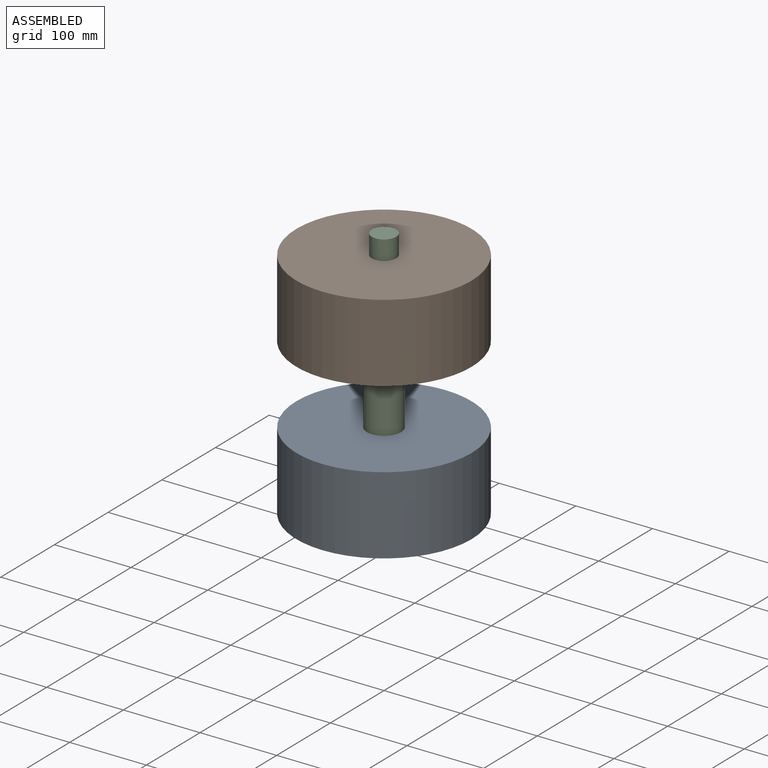
[diagram: assembled view]
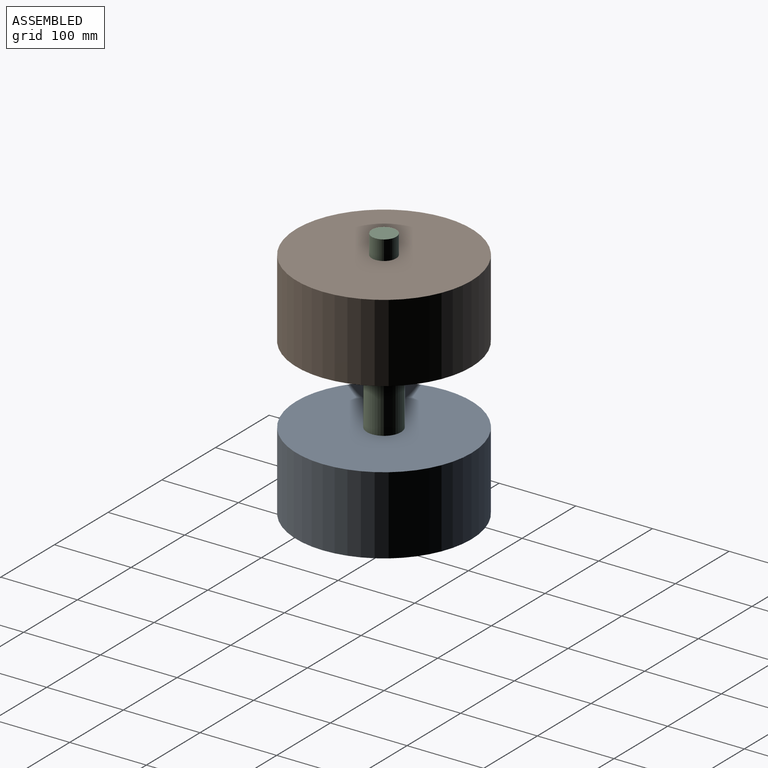
[diagram: assembled view, second angle]
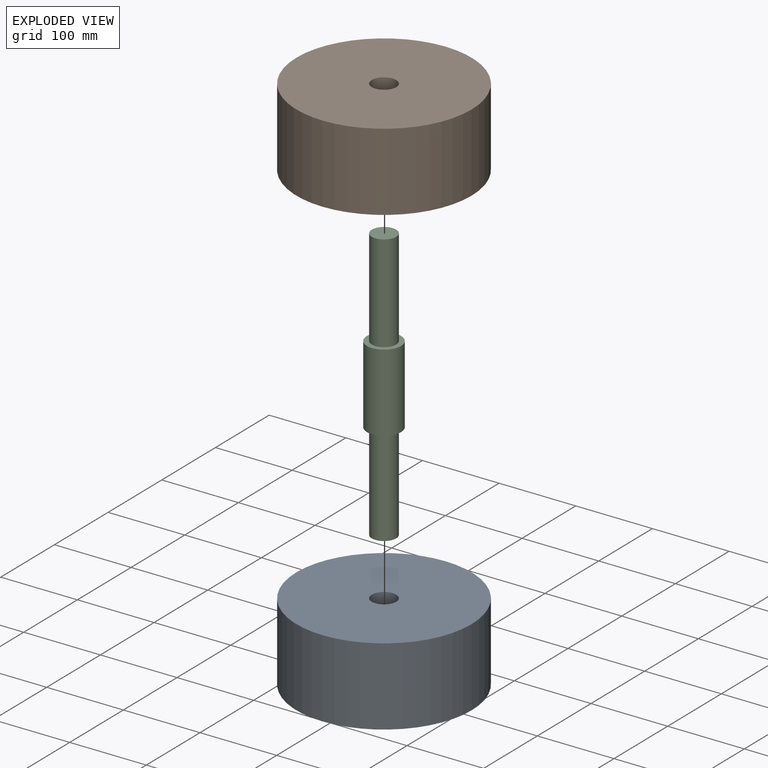
[diagram: exploded view]
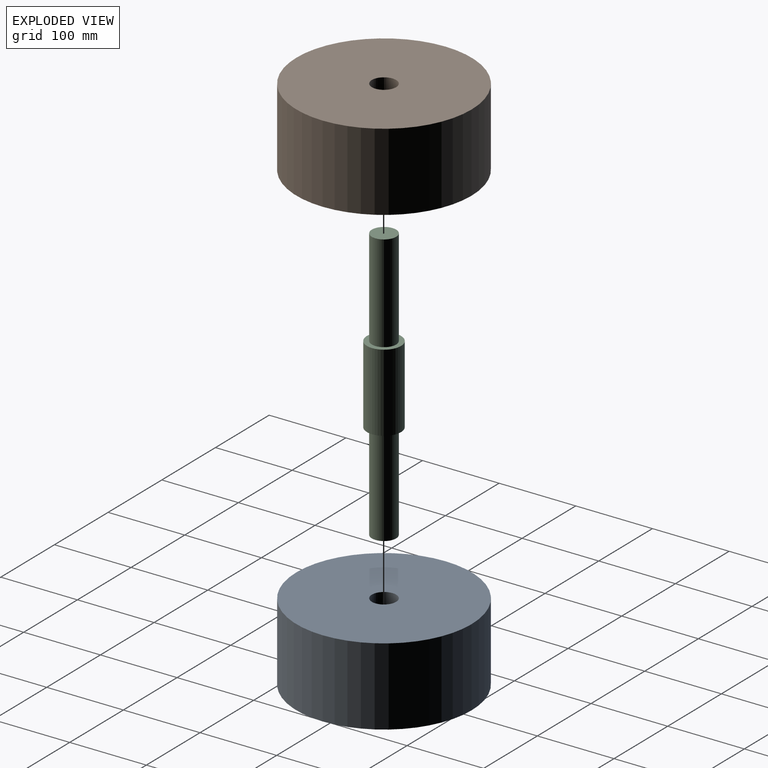
[diagram: exploded view, second angle]
ASSEMBLY  parts=3 mates=2
PART A: 4 faces, bbox 228.6x228.6x101.6 mm
  f0: cylinder r=15.88mm len=101.6mm, axis (0,0,-1), area 10134.1mm2, adj f2,f3
  f1: cylinder r=114.3mm len=228.6mm, axis (0,0,-1), area 72965.9mm2, adj f2,f3
  f2: plane 228.6x228.6mm, normal (0,0,1), area 40251.6mm2, adj f0,f1
  f3: plane 228.6x228.6mm, normal (0,0,-1), area 40251.6mm2, adj f0,f1
PART B: same geometry as A
PART C: 7 faces, bbox 355.6x44.5x44.5 mm
  f0: cylinder r=22.23mm len=101.6mm, axis (-1,0,0), area 14187.8mm2, adj f1,f2
  f1: plane 44.45x44.45mm, normal (1,0,0), area 760.1mm2, adj f0,f5
  f2: plane 44.45x44.45mm, normal (-1,0,0), area 760.1mm2, adj f0,f4
  f3: plane 31.75x31.75mm, normal (-1,0,0), area 791.7mm2, adj f4
  f4: cylinder r=15.88mm len=127mm, axis (-1,0,0), area 12667.7mm2, adj f2,f3
  f5: cylinder r=15.88mm len=127mm, axis (-1,0,0), area 12667.7mm2, adj f1,f6
  f6: plane 31.75x31.75mm, normal (1,0,0), area 791.7mm2, adj f5
PLACE A rot(axis=(1,0,0),180deg) t=(0,0,-101.6)mm
PLACE B at identity
PLACE C rot(axis=(0.71,0,-0.71),180deg) t=(0,0,-50.8)mm
MATE fastened A.f0 <-> C.f4  axis (0,0,-1) through (0,0,-101.6)mm
MATE fastened C.f0 <-> B.f0  axis (0,0,1) through (0,0,0)mm
